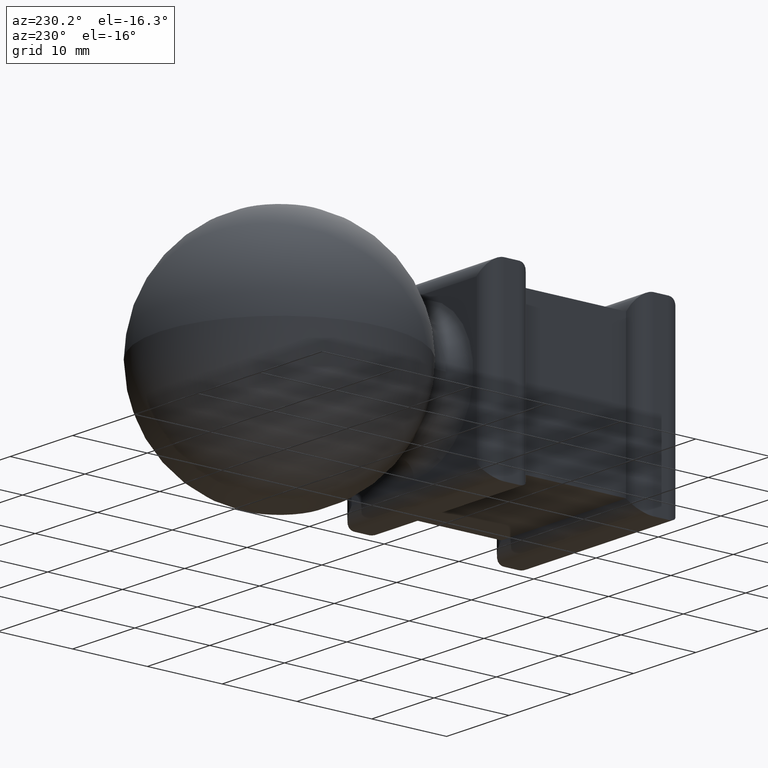
[diagram: clean part render]
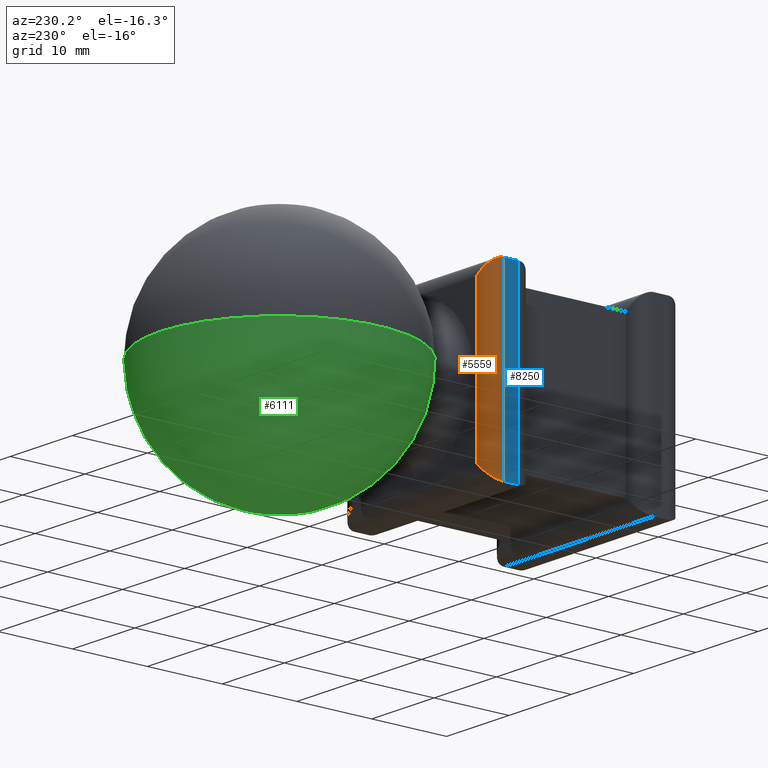
[diagram: same view with three faces highlighted in distinct colors, each labeled with its STEP entity id]
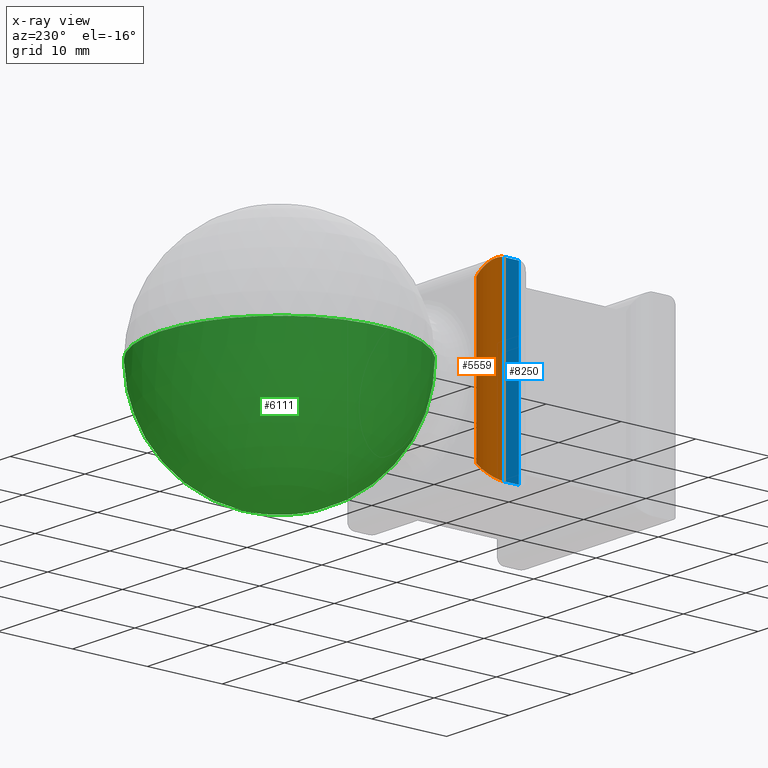
[diagram: x-ray of the same camera — body ghosted, the three highlighted faces saturated]
A machine part, auxiliary view with three faces highlighted in distinct colors.
The next image is the same camera in x-ray (body ghosted, the three faces saturated) — at least one of them is partly hidden behind the body in this view.
Their STEP definitions:

[orange] entity #5559 — the highlighted cylindrical surface (edge-blend (fillet) strip) has radius 2 mm, axis along (-0, 0, -1).
#77 = CARTESIAN_POINT ( 'NONE',  ( -12.00000000000000400, 25.17157287525381200, 11.99999999999999500 ) ) ;
#89 = CARTESIAN_POINT ( 'NONE',  ( -12.00000000000001100, 24.00000000000000000, -12.00000000000000200 ) ) ;
#561 = VERTEX_POINT ( 'NONE', #9631 ) ;
#571 = DIRECTION ( 'NONE',  ( 1.445602896647339200E-016, -0.0000000000000000000, 1.000000000000000000 ) ) ;
#853 = CARTESIAN_POINT ( 'NONE',  ( -12.00000000000001200, 25.17157287525381200, -12.00000000000000400 ) ) ;
#2122 = EDGE_LOOP ( 'NONE', ( #4820, #4221, #3490, #4668 ) ) ;
#2406 = CARTESIAN_POINT ( 'NONE',  ( -12.00000000000001100, 24.00000000000000000, -12.00000000000000200 ) ) ;
#2583 = CARTESIAN_POINT ( 'NONE',  ( -11.17157287525381700, 26.00000000000000700, 11.17157287525380800 ) ) ;
#2701 = CARTESIAN_POINT ( 'NONE',  ( -10.00000000000000700, 26.00000000000000400, 9.999999999999998200 ) ) ;
#3280 = CARTESIAN_POINT ( 'NONE',  ( -10.00000000000000700, 26.00000000000000400, 11.99999999999999800 ) ) ;
#3298 = EDGE_CURVE ( 'NONE', #561, #8446, #7944, .T. ) ;
#3490 = ORIENTED_EDGE ( 'NONE', *, *, #5665, .F. ) ;
#4221 = ORIENTED_EDGE ( 'NONE', *, *, #8818, .F. ) ;
#4529 = EDGE_CURVE ( 'NONE', #561, #7208, #10406, .T. ) ;
#4668 = ORIENTED_EDGE ( 'NONE', *, *, #3298, .F. ) ;
#4820 = ORIENTED_EDGE ( 'NONE', *, *, #4529, .T. ) ;
#4971 = VERTEX_POINT ( 'NONE', #5249 ) ;
#5095 = LINE ( 'NONE', #3280, #6843 ) ;
#5153 = CARTESIAN_POINT ( 'NONE',  ( -10.00000000000000900, 24.00000000000000000, 1.445602896647340500E-015 ) ) ;
#5249 = CARTESIAN_POINT ( 'NONE',  ( -10.00000000000001100, 26.00000000000000400, -10.00000000000000200 ) ) ;
#5559 = ADVANCED_FACE ( 'NONE', ( #5979 ), #5719, .T. ) ;
#5572 =( BOUNDED_CURVE ( )  B_SPLINE_CURVE ( 3, ( #89, #853, #7861, #7072 ),
 .UNSPECIFIED., .F., .F. ) 
 B_SPLINE_CURVE_WITH_KNOTS ( ( 4, 4 ),
 ( 0.0000000000000000000, 1.570796326794896600 ),
 .UNSPECIFIED. ) 
 CURVE ( )  GEOMETRIC_REPRESENTATION_ITEM ( )  RATIONAL_B_SPLINE_CURVE ( ( 1.000000000000000000, 0.8047378541243649400, 0.8047378541243649400, 1.000000000000000000 ) ) 
 REPRESENTATION_ITEM ( '' )  );
#5665 = EDGE_CURVE ( 'NONE', #8446, #4971, #5572, .T. ) ;
#5719 = CYLINDRICAL_SURFACE ( 'NONE', #5813, 2.000000000000000000 ) ;
#5813 = AXIS2_PLACEMENT_3D ( 'NONE', #5153, #9225, #10933 ) ;
#5979 = FACE_OUTER_BOUND ( 'NONE', #2122, .T. ) ;
#6843 = VECTOR ( 'NONE', #571, 1000.000000000000000 ) ;
#7010 = VECTOR ( 'NONE', #10315, 1000.000000000000000 ) ;
#7072 = CARTESIAN_POINT ( 'NONE',  ( -10.00000000000001100, 26.00000000000000400, -10.00000000000000200 ) ) ;
#7208 = VERTEX_POINT ( 'NONE', #9588 ) ;
#7665 = CARTESIAN_POINT ( 'NONE',  ( -12.00000000000001100, 24.00000000000000000, -12.00000000000000200 ) ) ;
#7861 = CARTESIAN_POINT ( 'NONE',  ( -11.17157287525382100, 26.00000000000000700, -11.17157287525381200 ) ) ;
#7944 = LINE ( 'NONE', #2406, #7010 ) ;
#8446 = VERTEX_POINT ( 'NONE', #7665 ) ;
#8818 = EDGE_CURVE ( 'NONE', #4971, #7208, #5095, .T. ) ;
#9225 = DIRECTION ( 'NONE',  ( -1.445602896647339200E-016, 0.0000000000000000000, -1.000000000000000000 ) ) ;
#9588 = CARTESIAN_POINT ( 'NONE',  ( -10.00000000000000700, 26.00000000000000400, 9.999999999999998200 ) ) ;
#9631 = CARTESIAN_POINT ( 'NONE',  ( -12.00000000000000700, 24.00000000000000000, 11.99999999999999800 ) ) ;
#10315 = DIRECTION ( 'NONE',  ( -1.445602896647339200E-016, -0.0000000000000000000, -1.000000000000000000 ) ) ;
#10406 =( BOUNDED_CURVE ( )  B_SPLINE_CURVE ( 3, ( #10544, #77, #2583, #2701 ),
 .UNSPECIFIED., .F., .T. ) 
 B_SPLINE_CURVE_WITH_KNOTS ( ( 4, 4 ),
 ( 0.0000000000000000000, 1.570796326794896600 ),
 .UNSPECIFIED. ) 
 CURVE ( )  GEOMETRIC_REPRESENTATION_ITEM ( )  RATIONAL_B_SPLINE_CURVE ( ( 1.000000000000000000, 0.8047378541243649400, 0.8047378541243649400, 1.000000000000000000 ) ) 
 REPRESENTATION_ITEM ( '' )  );
#10544 = CARTESIAN_POINT ( 'NONE',  ( -12.00000000000000700, 24.00000000000000000, 11.99999999999999800 ) ) ;
#10933 = DIRECTION ( 'NONE',  ( -1.000000000000000000, 0.0000000000000000000, 1.445602896647338900E-016 ) ) ;

[blue] entity #8250 — the highlighted planar face has unit normal (1, 0, -0).
#560 = CARTESIAN_POINT ( 'NONE',  ( -12.00000000000001100, 26.00000000000000400, -12.00000000000000200 ) ) ;
#561 = VERTEX_POINT ( 'NONE', #9631 ) ;
#1671 = VERTEX_POINT ( 'NONE', #4260 ) ;
#1991 = ORIENTED_EDGE ( 'NONE', *, *, #9735, .T. ) ;
#2217 = VECTOR ( 'NONE', #9056, 1000.000000000000000 ) ;
#2289 = DIRECTION ( 'NONE',  ( 1.000000000000000000, 0.0000000000000000000, -1.445602896647339200E-016 ) ) ;
#2406 = CARTESIAN_POINT ( 'NONE',  ( -12.00000000000001100, 24.00000000000000000, -12.00000000000000200 ) ) ;
#2423 = ORIENTED_EDGE ( 'NONE', *, *, #9976, .F. ) ;
#2769 = VERTEX_POINT ( 'NONE', #5417 ) ;
#2895 = PLANE ( 'NONE',  #11010 ) ;
#2991 = EDGE_CURVE ( 'NONE', #8446, #1671, #3900, .T. ) ;
#3298 = EDGE_CURVE ( 'NONE', #561, #8446, #7944, .T. ) ;
#3900 = LINE ( 'NONE', #7743, #9856 ) ;
#3975 = LINE ( 'NONE', #8732, #10186 ) ;
#4260 = CARTESIAN_POINT ( 'NONE',  ( -12.00000000000001100, 22.00000000000000000, -12.00000000000000200 ) ) ;
#4322 = DIRECTION ( 'NONE',  ( -0.0000000000000000000, -1.000000000000000000, -0.0000000000000000000 ) ) ;
#4527 = LINE ( 'NONE', #5663, #2217 ) ;
#4652 = ORIENTED_EDGE ( 'NONE', *, *, #3298, .T. ) ;
#4994 = DIRECTION ( 'NONE',  ( -1.445602896647339200E-016, 0.0000000000000000000, -1.000000000000000000 ) ) ;
#5417 = CARTESIAN_POINT ( 'NONE',  ( -12.00000000000000700, 22.00000000000000000, 11.99999999999999800 ) ) ;
#5663 = CARTESIAN_POINT ( 'NONE',  ( -12.00000000000001100, 22.00000000000000000, -12.00000000000000200 ) ) ;
#6091 = DIRECTION ( 'NONE',  ( -0.0000000000000000000, -1.000000000000000000, -0.0000000000000000000 ) ) ;
#6810 = EDGE_LOOP ( 'NONE', ( #8464, #1991, #2423, #4652 ) ) ;
#7010 = VECTOR ( 'NONE', #10315, 1000.000000000000000 ) ;
#7665 = CARTESIAN_POINT ( 'NONE',  ( -12.00000000000001100, 24.00000000000000000, -12.00000000000000200 ) ) ;
#7743 = CARTESIAN_POINT ( 'NONE',  ( -12.00000000000001100, 26.00000000000000400, -12.00000000000000200 ) ) ;
#7944 = LINE ( 'NONE', #2406, #7010 ) ;
#8250 = ADVANCED_FACE ( 'NONE', ( #11183 ), #2895, .F. ) ;
#8446 = VERTEX_POINT ( 'NONE', #7665 ) ;
#8464 = ORIENTED_EDGE ( 'NONE', *, *, #2991, .T. ) ;
#8732 = CARTESIAN_POINT ( 'NONE',  ( -12.00000000000000700, 26.00000000000000400, 11.99999999999999800 ) ) ;
#9056 = DIRECTION ( 'NONE',  ( 1.445602896647339200E-016, -0.0000000000000000000, 1.000000000000000000 ) ) ;
#9631 = CARTESIAN_POINT ( 'NONE',  ( -12.00000000000000700, 24.00000000000000000, 11.99999999999999800 ) ) ;
#9735 = EDGE_CURVE ( 'NONE', #1671, #2769, #4527, .T. ) ;
#9856 = VECTOR ( 'NONE', #4322, 1000.000000000000000 ) ;
#9976 = EDGE_CURVE ( 'NONE', #561, #2769, #3975, .T. ) ;
#10186 = VECTOR ( 'NONE', #6091, 1000.000000000000000 ) ;
#10315 = DIRECTION ( 'NONE',  ( -1.445602896647339200E-016, -0.0000000000000000000, -1.000000000000000000 ) ) ;
#11010 = AXIS2_PLACEMENT_3D ( 'NONE', #560, #2289, #4994 ) ;
#11183 = FACE_OUTER_BOUND ( 'NONE', #6810, .T. ) ;

[green] entity #6111 — the highlighted spherical surface has radius 16 mm.
#20 = DIRECTION ( 'NONE',  ( 1.000000000000000000, 0.0000000000000000000, 0.0000000000000000000 ) ) ;
#523 = DIRECTION ( 'NONE',  ( 1.000000000000000000, 0.0000000000000000000, -1.224646799147353200E-016 ) ) ;
#544 = AXIS2_PLACEMENT_3D ( 'NONE', #10453, #1935, #20 ) ;
#614 = DIRECTION ( 'NONE',  ( 3.061616997868383000E-017, 1.000000000000000000, 0.0000000000000000000 ) ) ;
#730 = ORIENTED_EDGE ( 'NONE', *, *, #8796, .T. ) ;
#1575 = AXIS2_PLACEMENT_3D ( 'NONE', #11128, #614, #5952 ) ;
#1935 = DIRECTION ( 'NONE',  ( 0.0000000000000000000, 0.0000000000000000000, 1.000000000000000000 ) ) ;
#1973 = EDGE_CURVE ( 'NONE', #5703, #10635, #2364, .T. ) ;
#2364 = CIRCLE ( 'NONE', #2384, 16.00000000000000000 ) ;
#2384 = AXIS2_PLACEMENT_3D ( 'NONE', #4063, #6640, #523 ) ;
#3102 = SPHERICAL_SURFACE ( 'NONE', #544, 16.00000000000000000 ) ;
#3367 = CARTESIAN_POINT ( 'NONE',  ( 0.0000000000000000000, 44.00000000000000700, 0.0000000000000000000 ) ) ;
#3486 = AXIS2_PLACEMENT_3D ( 'NONE', #3367, #11131, #6694 ) ;
#3793 = FACE_OUTER_BOUND ( 'NONE', #8738, .T. ) ;
#3945 = CIRCLE ( 'NONE', #3486, 16.00000000000000000 ) ;
#4063 = CARTESIAN_POINT ( 'NONE',  ( 0.0000000000000000000, 44.00000000000000700, 0.0000000000000000000 ) ) ;
#4352 = CARTESIAN_POINT ( 'NONE',  ( 8.444444444444441100, 30.40988013207053000, 0.0000000000000000000 ) ) ;
#4463 = CARTESIAN_POINT ( 'NONE',  ( -8.444444444444441100, 30.40988013207053000, 1.034146185946653300E-015 ) ) ;
#4890 = EDGE_CURVE ( 'NONE', #5703, #5065, #3945, .T. ) ;
#5065 = VERTEX_POINT ( 'NONE', #4352 ) ;
#5512 = CIRCLE ( 'NONE', #1575, 8.444444444444442900 ) ;
#5703 = VERTEX_POINT ( 'NONE', #7240 ) ;
#5952 = DIRECTION ( 'NONE',  ( -1.000000000000000000, 0.0000000000000000000, 0.0000000000000000000 ) ) ;
#6111 = ADVANCED_FACE ( 'NONE', ( #3793 ), #3102, .T. ) ;
#6640 = DIRECTION ( 'NONE',  ( 1.224646799147353200E-016, -3.749399456654644000E-033, 1.000000000000000000 ) ) ;
#6694 = DIRECTION ( 'NONE',  ( -1.000000000000000000, 0.0000000000000000000, 0.0000000000000000000 ) ) ;
#7240 = CARTESIAN_POINT ( 'NONE',  ( 1.469576158976823900E-015, 60.00000000000000700, 0.0000000000000000000 ) ) ;
#7926 = ORIENTED_EDGE ( 'NONE', *, *, #4890, .T. ) ;
#8738 = EDGE_LOOP ( 'NONE', ( #10261, #7926, #730 ) ) ;
#8796 = EDGE_CURVE ( 'NONE', #5065, #10635, #5512, .T. ) ;
#10261 = ORIENTED_EDGE ( 'NONE', *, *, #1973, .F. ) ;
#10453 = CARTESIAN_POINT ( 'NONE',  ( 0.0000000000000000000, 44.00000000000000700, 0.0000000000000000000 ) ) ;
#10635 = VERTEX_POINT ( 'NONE', #4463 ) ;
#11128 = CARTESIAN_POINT ( 'NONE',  ( -4.160774199072170600E-016, 30.40988013207053000, 0.0000000000000000000 ) ) ;
#11131 = DIRECTION ( 'NONE',  ( 0.0000000000000000000, 0.0000000000000000000, -1.000000000000000000 ) ) ;